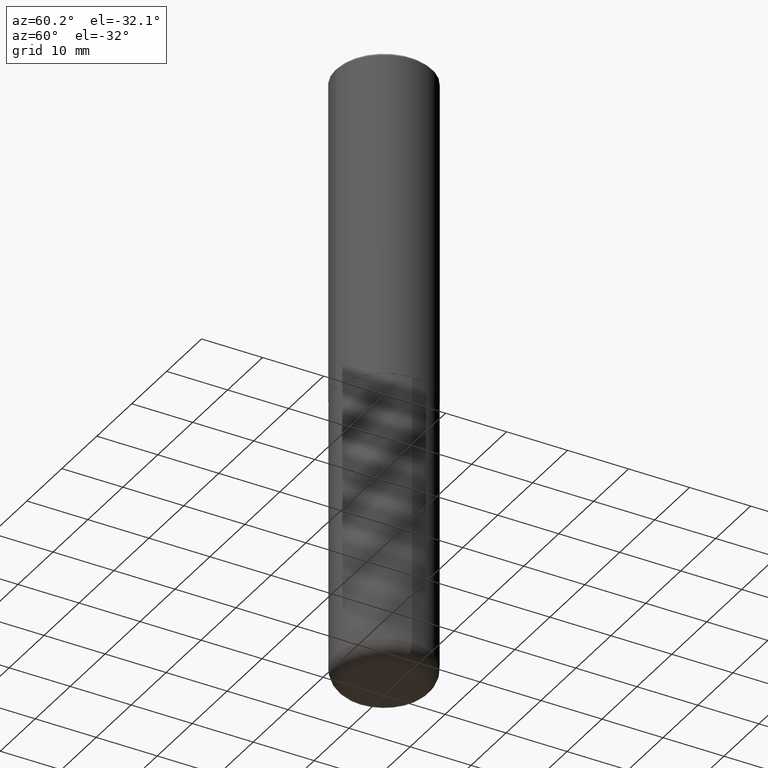
[diagram: clean part render]
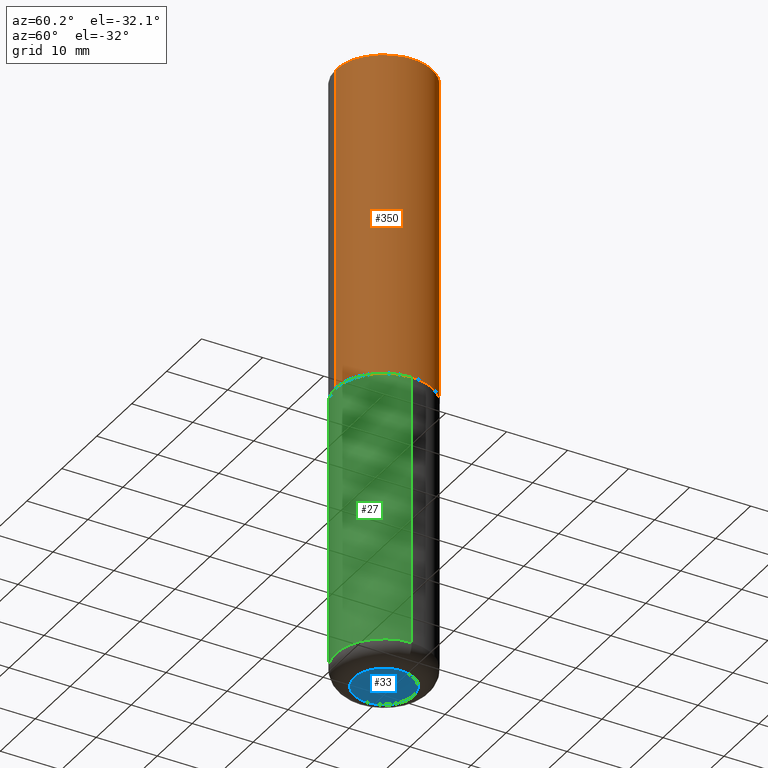
[diagram: same view with three faces highlighted in distinct colors, each labeled with its STEP entity id]
A machine part, auxiliary view with three faces highlighted in distinct colors.
Their STEP definitions:

[orange] entity #350 — the highlighted cylindrical surface (partial cylindrical patch) has radius 7.9375 mm, axis along (-0, 0, 1).
#24 = EDGE_CURVE ( 'NONE', #237, #273, #184, .T. ) ;
#50 = VERTEX_POINT ( 'NONE', #403 ) ;
#66 = DIRECTION ( 'NONE',  ( -2.444852431726452894E-29, 3.492364022149836358E-15, 1.000000000000000000 ) ) ;
#75 = CIRCLE ( 'NONE', #327, 0.3125000000000000000 ) ;
#99 = DIRECTION ( 'NONE',  ( -2.444852431726452614E-29, 3.492364022149836358E-15, 1.000000000000000000 ) ) ;
#102 = VECTOR ( 'NONE', #123, 39.37007874015748143 ) ;
#103 = CIRCLE ( 'NONE', #377, 0.3125000000000002776 ) ;
#104 = DIRECTION ( 'NONE',  ( -6.982962677686265922E-15, -1.000000000000000000, 3.496765431890253764E-15 ) ) ;
#121 = ORIENTED_EDGE ( 'NONE', *, *, #390, .F. ) ;
#123 = DIRECTION ( 'NONE',  ( -2.444852431726452614E-29, 3.492364022149836358E-15, 1.000000000000000000 ) ) ;
#128 = CARTESIAN_POINT ( 'NONE',  ( 0.000000000000000000, 0.000000000000000000, 0.000000000000000000 ) ) ;
#138 = CARTESIAN_POINT ( 'NONE',  ( 2.182175836776958741E-15, 0.3124999999999999445, -0.02000000000000116268 ) ) ;
#160 = ORIENTED_EDGE ( 'NONE', *, *, #375, .T. ) ;
#177 = ORIENTED_EDGE ( 'NONE', *, *, #24, .T. ) ;
#178 = DIRECTION ( 'NONE',  ( -6.982962677686265133E-15, -1.000000000000000000, 3.492364022149836358E-15 ) ) ;
#184 = LINE ( 'NONE', #313, #102 ) ;
#216 = CARTESIAN_POINT ( 'NONE',  ( 5.192866564986985411E-29, -7.417781183046251262E-15, -2.123999999999999666 ) ) ;
#219 = CARTESIAN_POINT ( 'NONE',  ( 4.889704863452922148E-31, -6.984728044299695791E-17, -0.02000000000000006981 ) ) ;
#223 = CARTESIAN_POINT ( 'NONE',  ( 2.220446049250340297E-15, 0.3124999999999928391, -2.124000000000000554 ) ) ;
#231 = ORIENTED_EDGE ( 'NONE', *, *, #235, .F. ) ;
#235 = EDGE_CURVE ( 'NONE', #271, #273, #75, .T. ) ;
#237 = VERTEX_POINT ( 'NONE', #223 ) ;
#245 = CARTESIAN_POINT ( 'NONE',  ( -2.182175836776959136E-15, -0.3125000000000001665, 1.091363756921824478E-15 ) ) ;
#250 = AXIS2_PLACEMENT_3D ( 'NONE', #128, #351, #178 ) ;
#252 = CYLINDRICAL_SURFACE ( 'NONE', #250, 0.3125000000000001665 ) ;
#271 = VERTEX_POINT ( 'NONE', #333 ) ;
#273 = VERTEX_POINT ( 'NONE', #138 ) ;
#279 = LINE ( 'NONE', #245, #301 ) ;
#301 = VECTOR ( 'NONE', #99, 39.37007874015748143 ) ;
#313 = CARTESIAN_POINT ( 'NONE',  ( 2.220446049250313475E-15, 0.3125000000000001665, -1.091363756921824478E-15 ) ) ;
#325 = DIRECTION ( 'NONE',  ( -6.982962677686265133E-15, -1.000000000000000000, 3.496765431890256920E-15 ) ) ;
#327 = AXIS2_PLACEMENT_3D ( 'NONE', #219, #356, #325 ) ;
#333 = CARTESIAN_POINT ( 'NONE',  ( -2.143905624303602824E-15, -0.3125000000000000555, -0.01999999999999897693 ) ) ;
#350 = ADVANCED_FACE ( 'NONE', ( #355 ), #252, .T. ) ;
#351 = DIRECTION ( 'NONE',  ( -2.444852431726452894E-29, 3.492364022149836358E-15, 1.000000000000000000 ) ) ;
#355 = FACE_OUTER_BOUND ( 'NONE', #411, .T. ) ;
#356 = DIRECTION ( 'NONE',  ( -2.444852431726452894E-29, 3.492364022149836358E-15, 1.000000000000000000 ) ) ;
#375 = EDGE_CURVE ( 'NONE', #50, #237, #103, .T. ) ;
#377 = AXIS2_PLACEMENT_3D ( 'NONE', #216, #66, #104 ) ;
#390 = EDGE_CURVE ( 'NONE', #50, #271, #279, .T. ) ;
#403 = CARTESIAN_POINT ( 'NONE',  ( -2.182175836776908254E-15, -0.3125000000000077161, -2.123999999999998334 ) ) ;
#411 = EDGE_LOOP ( 'NONE', ( #160, #177, #231, #121 ) ) ;

[blue] entity #33 — the highlighted planar face has unit normal (0, -0, -1).
#3 = CARTESIAN_POINT ( 'NONE',  ( -0.1925000000000000044, -1.196231606724774300E-14, -4.000000000000000888 ) ) ;
#5 = CIRCLE ( 'NONE', #230, 0.1925000000000000044 ) ;
#7 = DIRECTION ( 'NONE',  ( 1.000000000000000000, -6.982962677686269077E-15, 0.000000000000000000 ) ) ;
#32 = DIRECTION ( 'NONE',  ( -2.445468806185136597E-29, 3.491481338843145583E-15, 1.000000000000000000 ) ) ;
#33 = ADVANCED_FACE ( 'NONE', ( #169 ), #48, .T. ) ;
#48 = PLANE ( 'NONE',  #152 ) ;
#49 = ORIENTED_EDGE ( 'NONE', *, *, #190, .F. ) ;
#53 = DIRECTION ( 'NONE',  ( 1.000000000000000000, -6.982962677686269077E-15, 0.000000000000000000 ) ) ;
#56 = CARTESIAN_POINT ( 'NONE',  ( 1.854023762560946993E-29, -2.531905987449679755E-14, -4.000000000000000000 ) ) ;
#78 = ORIENTED_EDGE ( 'NONE', *, *, #285, .F. ) ;
#120 = AXIS2_PLACEMENT_3D ( 'NONE', #393, #32, #7 ) ;
#127 = EDGE_LOOP ( 'NONE', ( #49, #78 ) ) ;
#132 = CIRCLE ( 'NONE', #120, 0.1925000000000000044 ) ;
#136 = CARTESIAN_POINT ( 'NONE',  ( 0.1925000000000000044, -1.531014567082719057E-14, -4.000000000000000888 ) ) ;
#152 = AXIS2_PLACEMENT_3D ( 'NONE', #56, #209, #380 ) ;
#169 = FACE_OUTER_BOUND ( 'NONE', #127, .T. ) ;
#190 = EDGE_CURVE ( 'NONE', #239, #228, #5, .T. ) ;
#209 = DIRECTION ( 'NONE',  ( 2.438088387897960049E-29, -3.491481338843145188E-15, -1.000000000000000000 ) ) ;
#228 = VERTEX_POINT ( 'NONE', #3 ) ;
#230 = AXIS2_PLACEMENT_3D ( 'NONE', #349, #244, #53 ) ;
#239 = VERTEX_POINT ( 'NONE', #136 ) ;
#244 = DIRECTION ( 'NONE',  ( -2.445468806185136597E-29, 3.491481338843145583E-15, 1.000000000000000000 ) ) ;
#285 = EDGE_CURVE ( 'NONE', #228, #239, #132, .T. ) ;
#349 = CARTESIAN_POINT ( 'NONE',  ( 9.781875224740547508E-29, -1.396592535537258391E-14, -4.000000000000000888 ) ) ;
#380 = DIRECTION ( 'NONE',  ( -1.000000000000000000, 6.982962677686265922E-15, -4.876176775795935793E-29 ) ) ;
#393 = CARTESIAN_POINT ( 'NONE',  ( 9.781875224740547508E-29, -1.396592535537258391E-14, -4.000000000000000888 ) ) ;

[green] entity #27 — the highlighted cylindrical surface (partial cylindrical patch) has radius 7.9375 mm, axis along (-0, 0, 1).
#9 = DIRECTION ( 'NONE',  ( -2.445468806185136597E-29, 3.491481338843145583E-15, 1.000000000000000000 ) ) ;
#27 = ADVANCED_FACE ( 'NONE', ( #317 ), #85, .T. ) ;
#38 = DIRECTION ( 'NONE',  ( 1.000000000000000000, -6.982962677686266711E-15, 4.876176775795936353E-29 ) ) ;
#43 = CARTESIAN_POINT ( 'NONE',  ( 0.3125000000000000555, -1.572912343148836404E-14, -3.880000000000000338 ) ) ;
#52 = VERTEX_POINT ( 'NONE', #43 ) ;
#62 = DIRECTION ( 'NONE',  ( -2.445468806185136597E-29, 3.491481338843145583E-15, 1.000000000000000000 ) ) ;
#76 = VERTEX_POINT ( 'NONE', #93 ) ;
#82 = CARTESIAN_POINT ( 'NONE',  ( 0.000000000000000000, 0.000000000000000000, 0.000000000000000000 ) ) ;
#85 = CYLINDRICAL_SURFACE ( 'NONE', #195, 0.3125000000000000000 ) ;
#90 = ORIENTED_EDGE ( 'NONE', *, *, #417, .T. ) ;
#93 = CARTESIAN_POINT ( 'NONE',  ( -0.3125000000000000000, -8.262726670626231579E-15, -2.124999999999999556 ) ) ;
#114 = CARTESIAN_POINT ( 'NONE',  ( 0.3125000000000000000, -9.601573681818640393E-15, -2.124999999999999556 ) ) ;
#130 = CARTESIAN_POINT ( 'NONE',  ( -0.3125000000000000555, -1.132650154546109262E-14, -3.880000000000000338 ) ) ;
#148 = CARTESIAN_POINT ( 'NONE',  ( -0.3125000000000000000, 2.220446049250313081E-15, -1.537167215704658232E-29 ) ) ;
#153 = VECTOR ( 'NONE', #224, 39.37007874015748143 ) ;
#176 = EDGE_CURVE ( 'NONE', #211, #76, #205, .T. ) ;
#179 = VERTEX_POINT ( 'NONE', #114 ) ;
#191 = CARTESIAN_POINT ( 'NONE',  ( 9.488418967998330085E-29, -1.354694759471140570E-14, -3.880000000000000338 ) ) ;
#192 = DIRECTION ( 'NONE',  ( 1.000000000000000000, -6.982962677686265133E-15, 0.000000000000000000 ) ) ;
#195 = AXIS2_PLACEMENT_3D ( 'NONE', #82, #206, #38 ) ;
#204 = ORIENTED_EDGE ( 'NONE', *, *, #316, .F. ) ;
#205 = LINE ( 'NONE', #148, #391 ) ;
#206 = DIRECTION ( 'NONE',  ( -2.445468806185136597E-29, 3.491481338843145583E-15, 1.000000000000000000 ) ) ;
#211 = VERTEX_POINT ( 'NONE', #130 ) ;
#224 = DIRECTION ( 'NONE',  ( -2.445468806185136877E-29, 3.491481338843145188E-15, 1.000000000000000000 ) ) ;
#248 = DIRECTION ( 'NONE',  ( 1.000000000000000000, -6.982962677686269077E-15, 0.000000000000000000 ) ) ;
#288 = CIRCLE ( 'NONE', #353, 0.3125000000000000000 ) ;
#293 = CARTESIAN_POINT ( 'NONE',  ( 5.196621213143414147E-29, -7.419397845041682046E-15, -2.124999999999999556 ) ) ;
#316 = EDGE_CURVE ( 'NONE', #76, #179, #288, .T. ) ;
#317 = FACE_OUTER_BOUND ( 'NONE', #381, .T. ) ;
#332 = AXIS2_PLACEMENT_3D ( 'NONE', #191, #62, #248 ) ;
#340 = ORIENTED_EDGE ( 'NONE', *, *, #176, .F. ) ;
#352 = DIRECTION ( 'NONE',  ( -2.445468806185136877E-29, 3.491481338843145188E-15, 1.000000000000000000 ) ) ;
#353 = AXIS2_PLACEMENT_3D ( 'NONE', #293, #9, #192 ) ;
#371 = ORIENTED_EDGE ( 'NONE', *, *, #395, .T. ) ;
#381 = EDGE_LOOP ( 'NONE', ( #340, #371, #90, #204 ) ) ;
#388 = LINE ( 'NONE', #389, #153 ) ;
#389 = CARTESIAN_POINT ( 'NONE',  ( 0.3125000000000000000, -2.182175836776958347E-15, 1.523805242436230075E-29 ) ) ;
#391 = VECTOR ( 'NONE', #352, 39.37007874015748143 ) ;
#395 = EDGE_CURVE ( 'NONE', #211, #52, #410, .T. ) ;
#410 = CIRCLE ( 'NONE', #332, 0.3125000000000000000 ) ;
#417 = EDGE_CURVE ( 'NONE', #52, #179, #388, .T. ) ;